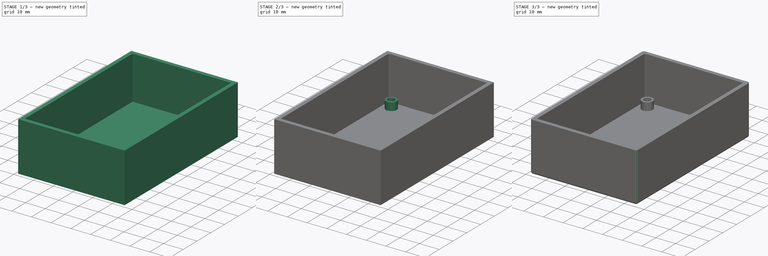
[diagram: build sequence overview — one tinted view per stage of 3, left to right]
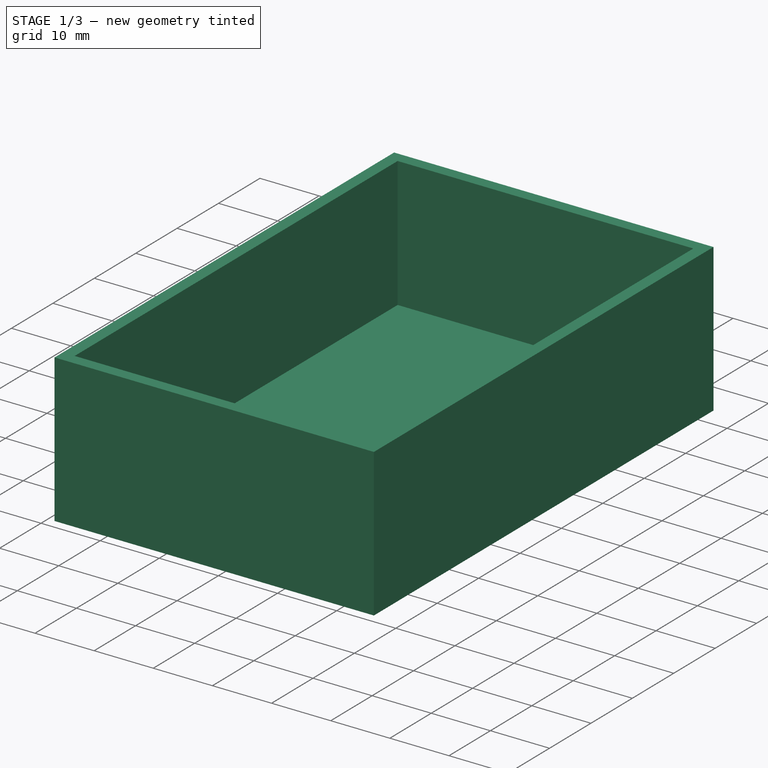
[diagram: stage 1 of 3 — iso view after this stage's code; geometry added in this stage tinted green]
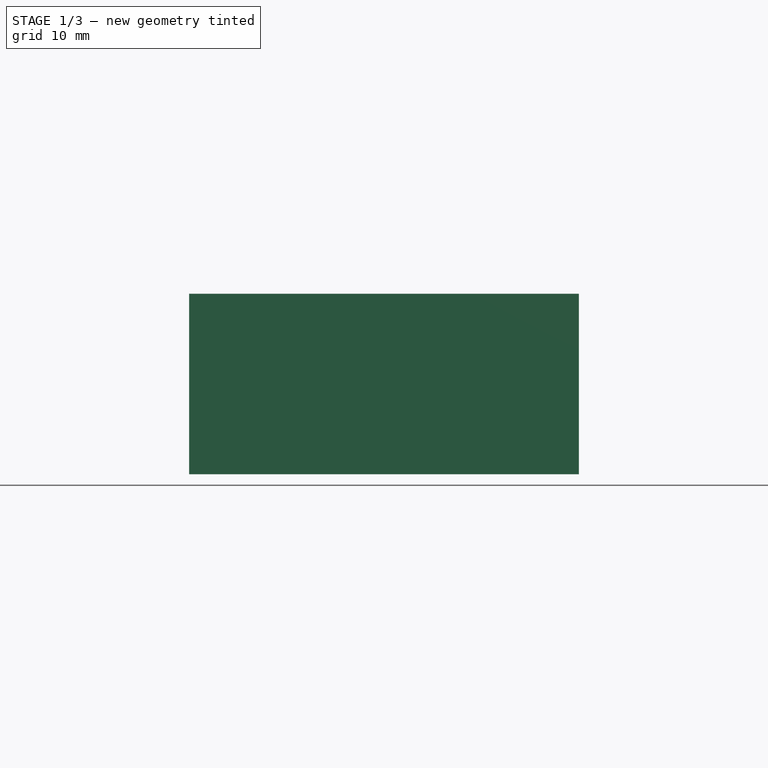
[diagram: stage 1 of 3 — front view after this stage's code; geometry added in this stage tinted green]
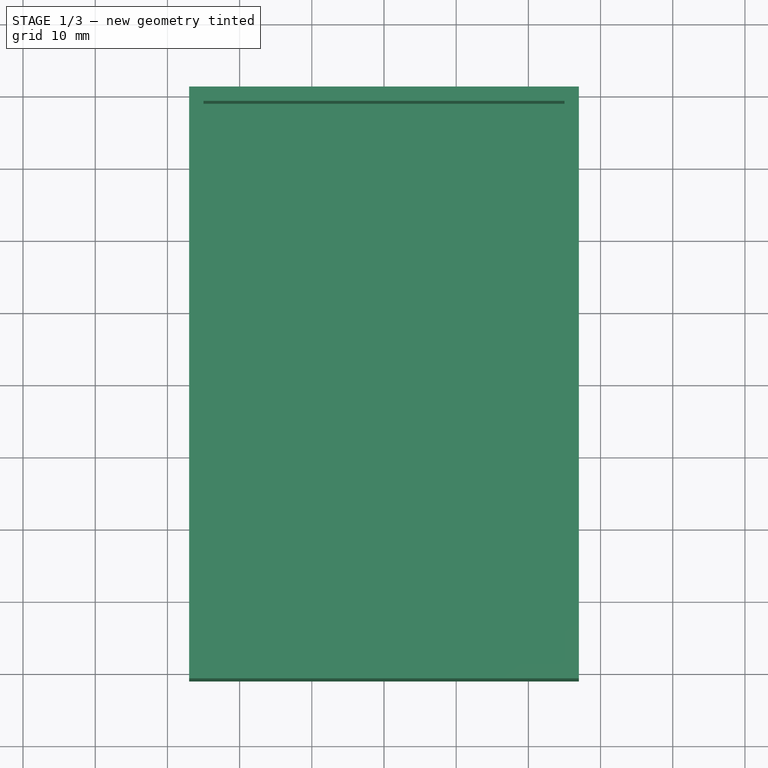
[diagram: stage 1 of 3 — top view after this stage's code; geometry added in this stage tinted green]
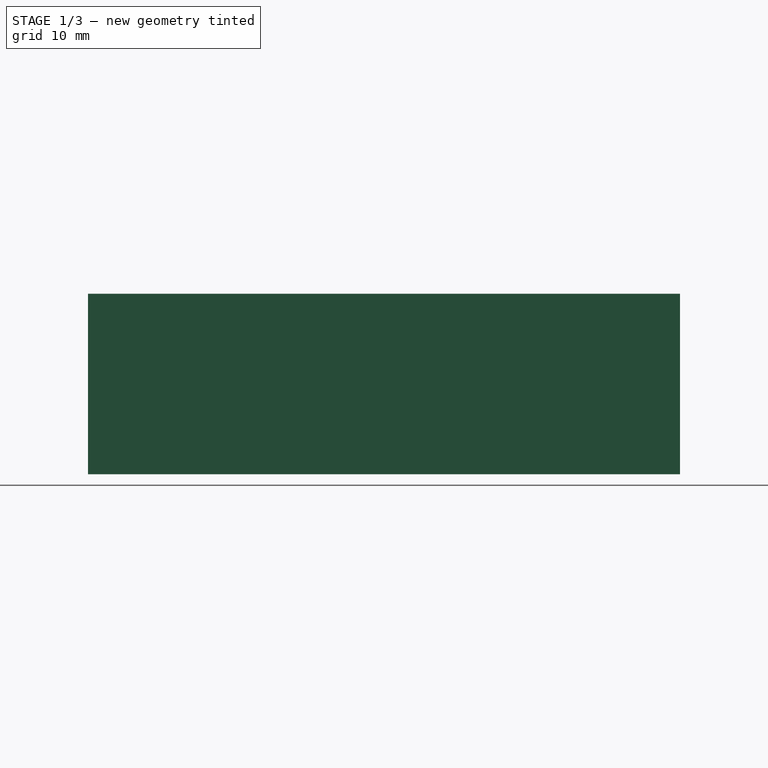
[diagram: stage 1 of 3 — right view after this stage's code; geometry added in this stage tinted green]
FCSTD DOCUMENT  (FreeCAD 0.18R16146 (Git))
Label: medium_nuclone_cover_expansion
License: All rights reserved
LicenseURL: http://en.wikipedia.org/wiki/All_rights_reserved
objects: Sketcher::SketchObject×4, PartDesign::Pad×2, PartDesign::Pocket×2, PartDesign::Chamfer×1, PartDesign::Fillet×1, PartDesign::Body×1
note: 15 computed .brp shape members not serialized (recipe doc carries the construction recipe); baked Part::Feature solids carry a one-line shape summary decoded from their .brp

FEATURE [Sketcher::SketchObject] Sketch  label="cover body sketch"
  MapMode = 5
  Support = -> [XY_Plane]
  sketch-geometry (4):
    g0: LineSegment StartX=-27 StartY=41 StartZ=0 EndX=27 EndY=41 EndZ=0
    g1: LineSegment StartX=27 StartY=41 StartZ=0 EndX=27 EndY=-41 EndZ=0
    g2: LineSegment StartX=27 StartY=-41 StartZ=0 EndX=-27 EndY=-41 EndZ=0
    g3: LineSegment StartX=-27 StartY=-41 StartZ=0 EndX=-27 EndY=41 EndZ=0
  constraints (10):
    c: Coincident(g0,g1)
    c: Coincident(g1,g2)
    c: Coincident(g2,g3)
    c: Coincident(g3,g0)
    c: Horizontal(g2)
    c: Vertical(g3)
    c: Symmetric(g0,g0,g-2)
    c: Symmetric(g1,g0,g-1)
    c: Distance(g2) = 54
    c: Distance(g1) = 82
FEATURE [PartDesign::Pad] Pad  label="cover body"
  Length = 25
  Length2 = 100
  Profile = -> Sketch
  Type = 0
FEATURE [Sketcher::SketchObject] Sketch001  label="cover inside sketc"
  ExternalGeometry = -> [Pad]
  MapMode = 5
  Placement = pos=(0,0,25) rot=(0,0,1;0rad)
  Support = -> [Pad]
  sketch-geometry (4):
    g0: LineSegment StartX=-25 StartY=39 StartZ=0 EndX=25 EndY=39 EndZ=0
    g1: LineSegment StartX=25 StartY=39 StartZ=0 EndX=25 EndY=-39 EndZ=0
    g2: LineSegment StartX=25 StartY=-39 StartZ=0 EndX=-25 EndY=-39 EndZ=0
    g3: LineSegment StartX=-25 StartY=-39 StartZ=0 EndX=-25 EndY=39 EndZ=0
  constraints (10):
    c: Coincident(g0,g1)
    c: Coincident(g1,g2)
    c: Coincident(g2,g3)
    c: Coincident(g3,g0)
    c: Horizontal(g2)
    c: Vertical(g3)
    c: Symmetric(g0,g1,g-1)
    c: Symmetric(g0,g0,g-2)
    c: Distance(g0,g-3) = 2
    c: Distance(g0,g-4) = 2
FEATURE [PartDesign::Pocket] Pocket  label="cover inside"
  BaseFeature = -> Pad
  Length = 22
  Length2 = 100
  Profile = -> Sketch001
  Type = 0
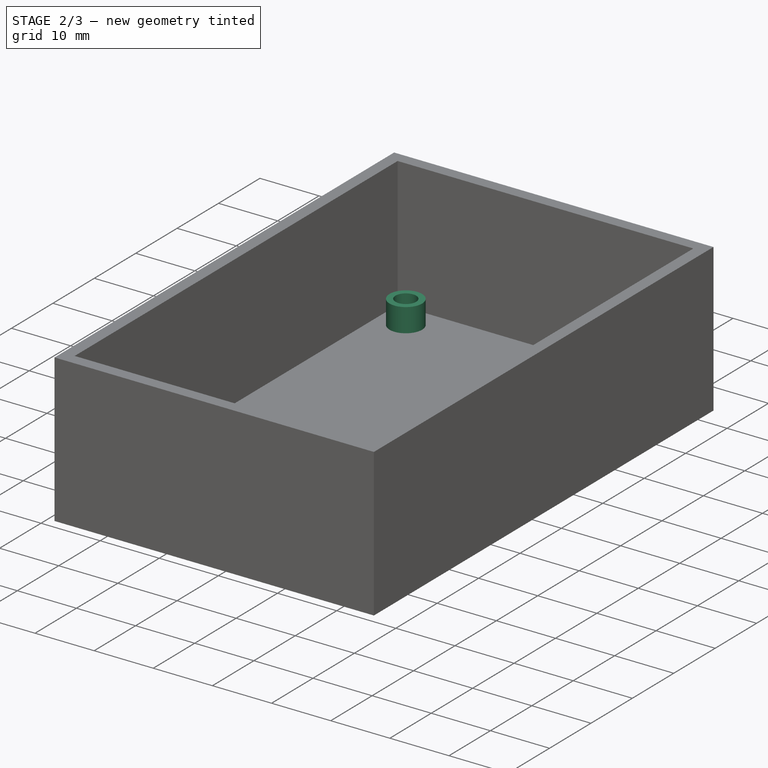
[diagram: stage 2 of 3 — iso view after this stage's code; geometry added in this stage tinted green]
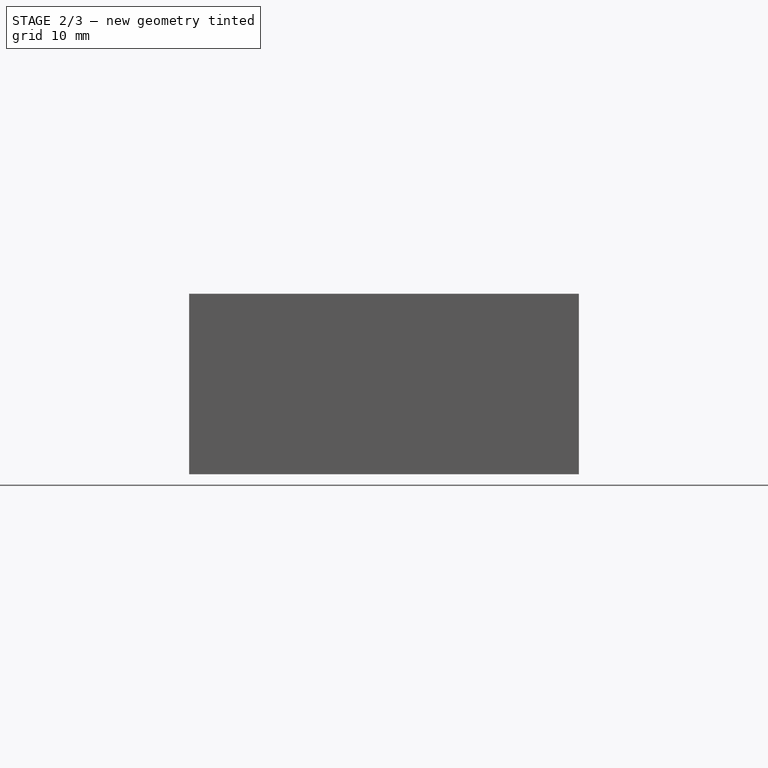
[diagram: stage 2 of 3 — front view after this stage's code; geometry added in this stage tinted green]
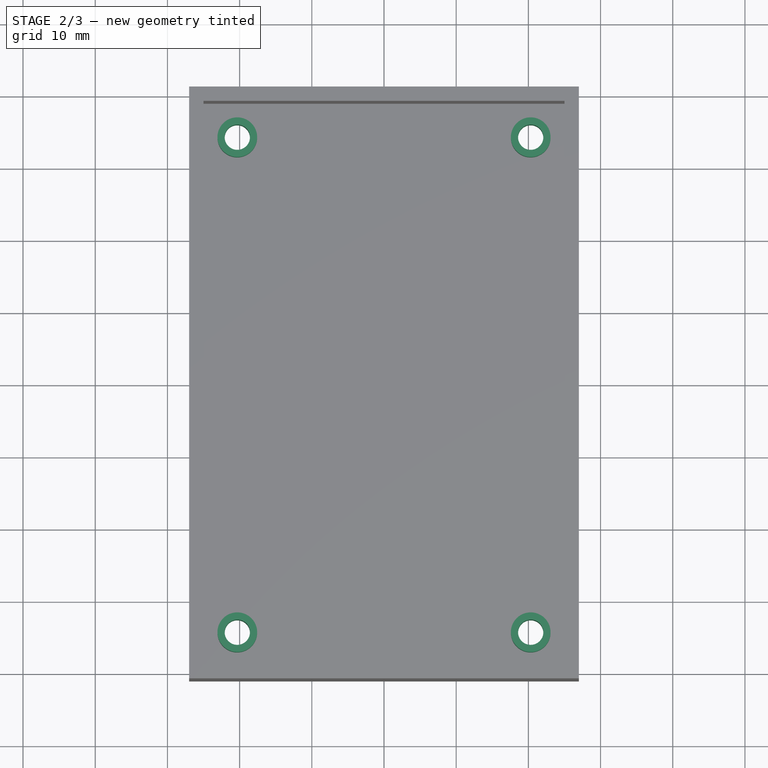
[diagram: stage 2 of 3 — top view after this stage's code; geometry added in this stage tinted green]
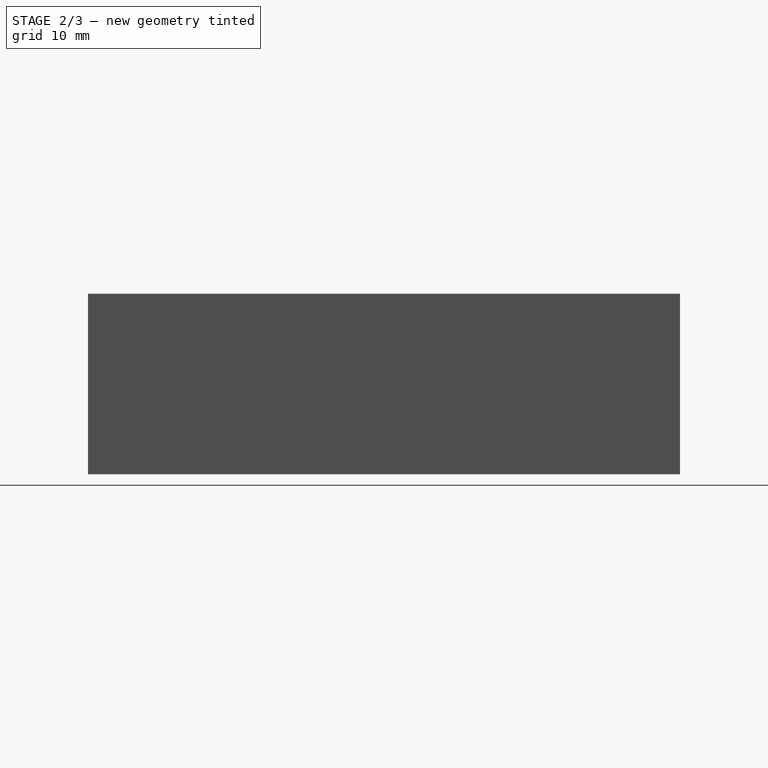
[diagram: stage 2 of 3 — right view after this stage's code; geometry added in this stage tinted green]
FEATURE [Sketcher::SketchObject] Sketch002  label="cover holes posts sketch"
  MapMode = 5
  Placement = pos=(0,0,3) rot=(0,0,1;0rad)
  Support = -> [Pocket]
  sketch-geometry (8):
    g0: LineSegment [constr] StartX=-20.32 StartY=34.29 StartZ=0 EndX=20.32 EndY=34.29 EndZ=0
    g1: LineSegment [constr] StartX=20.32 StartY=34.29 StartZ=0 EndX=20.32 EndY=-34.29 EndZ=0
    g2: LineSegment [constr] StartX=20.32 StartY=-34.29 StartZ=0 EndX=-20.32 EndY=-34.29 EndZ=0
    g3: LineSegment [constr] StartX=-20.32 StartY=-34.29 StartZ=0 EndX=-20.32 EndY=34.29 EndZ=0
    g4: Circle CenterX=-20.32 CenterY=34.29 CenterZ=0 NormalX=0 NormalY=0 NormalZ=1 AngleXU=0 Radius=2.75
    g5: Circle CenterX=20.32 CenterY=34.29 CenterZ=0 NormalX=0 NormalY=0 NormalZ=1 AngleXU=0 Radius=2.75
    g6: Circle CenterX=-20.32 CenterY=-34.29 CenterZ=0 NormalX=0 NormalY=0 NormalZ=1 AngleXU=0 Radius=2.75
    g7: Circle CenterX=20.32 CenterY=-34.29 CenterZ=0 NormalX=0 NormalY=0 NormalZ=1 AngleXU=0 Radius=2.75
  constraints (18):
    c: Coincident(g0,g1)
    c: Coincident(g1,g2)
    c: Coincident(g2,g3)
    c: Coincident(g3,g0)
    c: Horizontal(g2)
    c: Vertical(g3)
    c: Symmetric(g0,g0,g-2)
    c: Symmetric(g0,g1,g-1)
    c: Distance(g2) = 40.64
    c: Distance(g3) = 68.58
    c: Equal(g4,g5)
    c: Equal(g5,g7)
    c: Equal(g7,g6)
    c: Diameter(g4) = 5.5
    c: Coincident(g4,g0)
    c: Coincident(g5,g0)
    c: Coincident(g6,g2)
    c: Coincident(g7,g1)
FEATURE [PartDesign::Pad] Pad001  label="cover holes posts"
  BaseFeature = -> Pocket
  Length = 4
  Length2 = 100
  Profile = -> Sketch002
  Type = 0
FEATURE [Sketcher::SketchObject] Sketch003  label="cover holes sketch"
  ExternalGeometry = -> [Pad001]
  MapMode = 5
  Placement = pos=(0,0,0) rot=(1,0,0;3.14159rad)
  Support = -> [Pad001]
  sketch-geometry (4):
    g0: Circle CenterX=20.32 CenterY=-34.29 CenterZ=0 NormalX=0 NormalY=0 NormalZ=1 AngleXU=0 Radius=1.75
    g1: Circle CenterX=-20.32 CenterY=-34.29 CenterZ=0 NormalX=0 NormalY=0 NormalZ=1 AngleXU=0 Radius=1.75
    g2: Circle CenterX=-20.32 CenterY=34.29 CenterZ=0 NormalX=0 NormalY=0 NormalZ=1 AngleXU=0 Radius=1.75
    g3: Circle CenterX=20.32 CenterY=34.29 CenterZ=0 NormalX=0 NormalY=0 NormalZ=1 AngleXU=0 Radius=1.75
  constraints (8):
    c: Equal(g0,g1)
    c: Equal(g1,g2)
    c: Equal(g2,g3)
    c: Coincident(g0,g-6)
    c: Coincident(g1,g-5)
    c: Coincident(g2,g-4)
    c: Coincident(g3,g-3)
    c: Diameter(g1) = 3.5
FEATURE [PartDesign::Pocket] Pocket001  label="cover holes"
  BaseFeature = -> Pad001
  Length = 23
  Length2 = 100
  Profile = -> Sketch003
  Type = 0
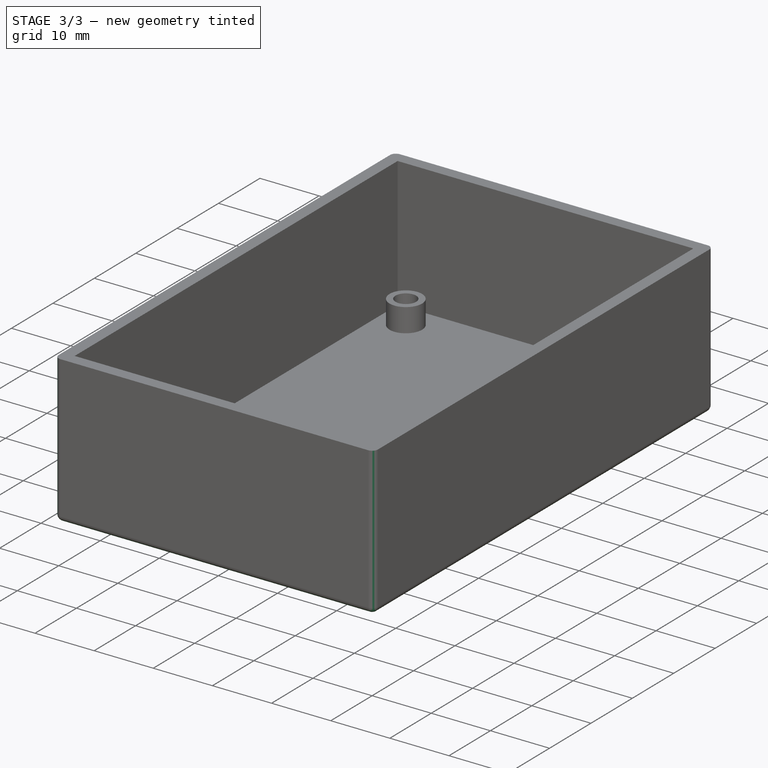
[diagram: stage 3 of 3 — iso view after this stage's code; geometry added in this stage tinted green]
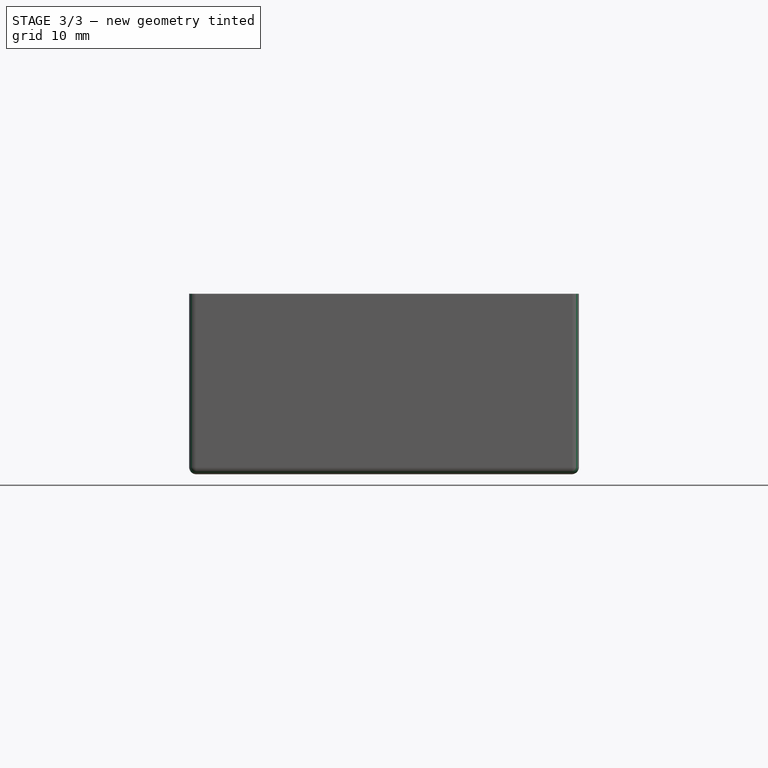
[diagram: stage 3 of 3 — front view after this stage's code; geometry added in this stage tinted green]
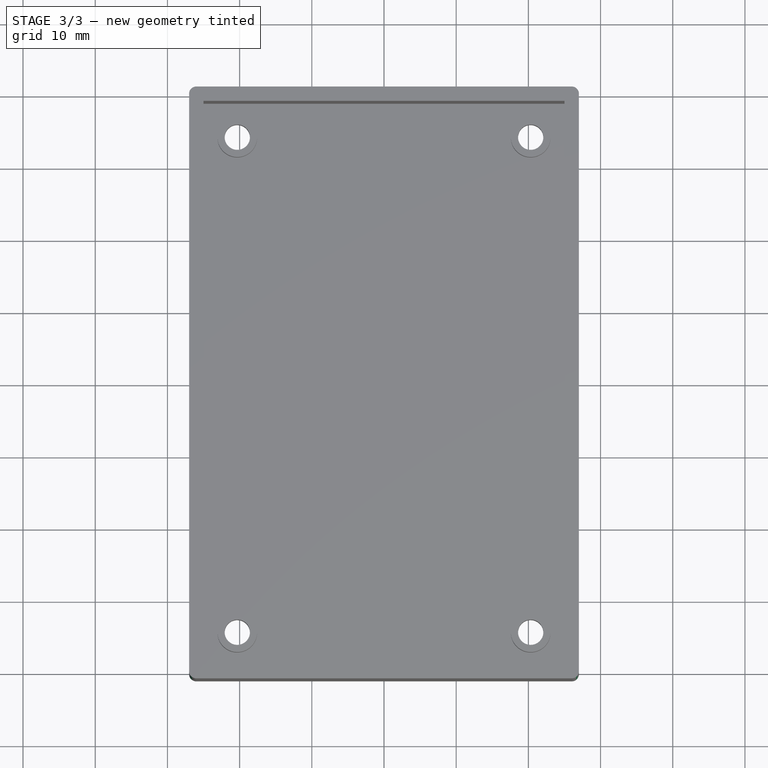
[diagram: stage 3 of 3 — top view after this stage's code; geometry added in this stage tinted green]
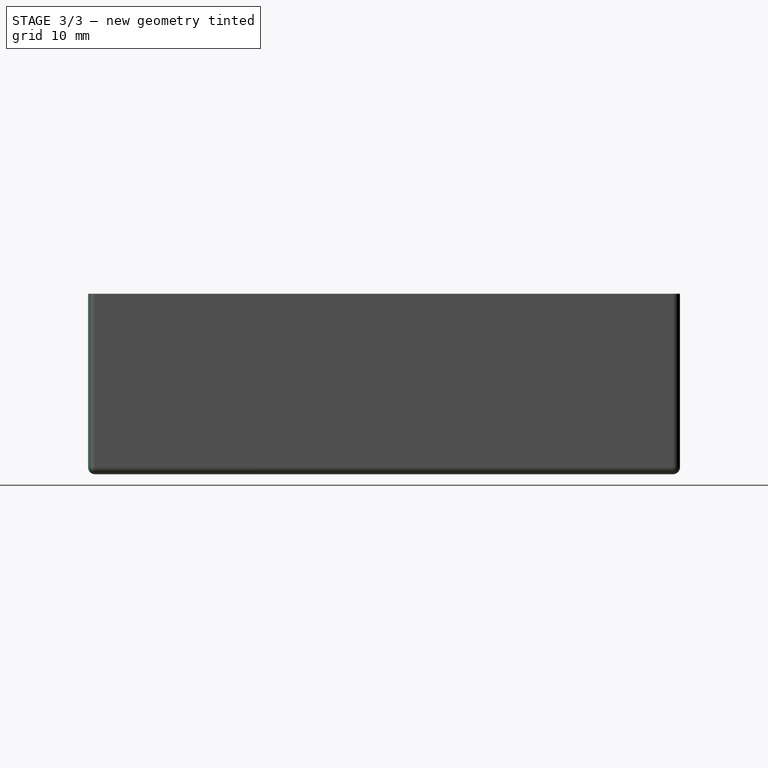
[diagram: stage 3 of 3 — right view after this stage's code; geometry added in this stage tinted green]
FEATURE [PartDesign::Chamfer] Chamfer  label="cover hole chamfers"
  Base = -> Pocket001 [Edge13,Edge14,Edge15,Edge12]
  BaseFeature = -> Pocket001
  Size = 1.5
FEATURE [PartDesign::Fillet] Fillet  label="cover outside fillets"
  Base = -> Chamfer [Edge2,Edge12,Edge4,Edge5,Edge3,Edge11,Edge16,Edge14]
  BaseFeature = -> Chamfer
  Radius = 1
FEATURE [PartDesign::Body] Body
  Group = -> [Sketch,Pad,Sketch001,Pocket,Sketch002,Pad001,Sketch003,Pocket001,Chamfer,Fillet]
  Origin = -> Origin
  Tip = -> Fillet
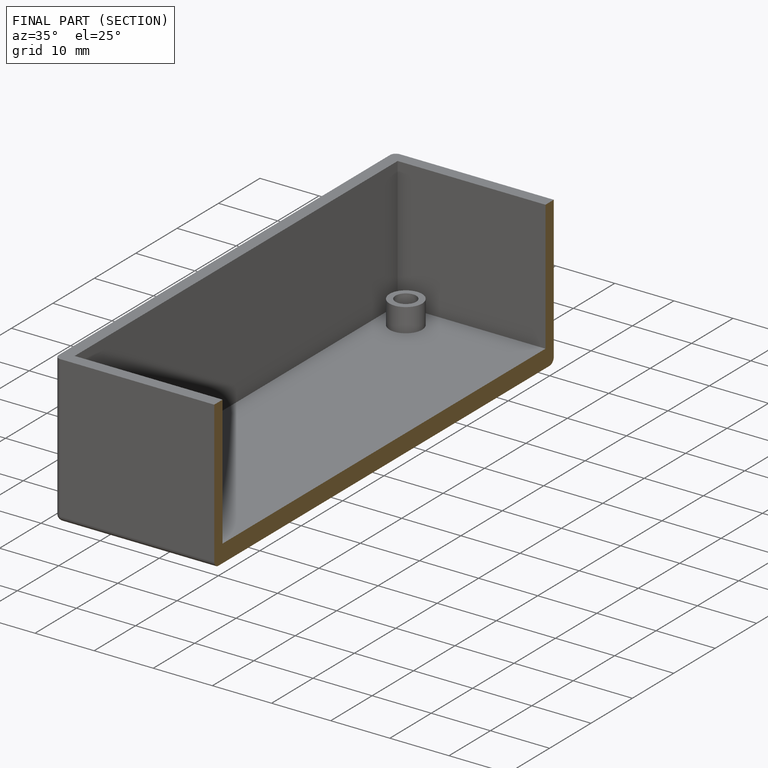
[diagram: finished part — half-section view (interior)]
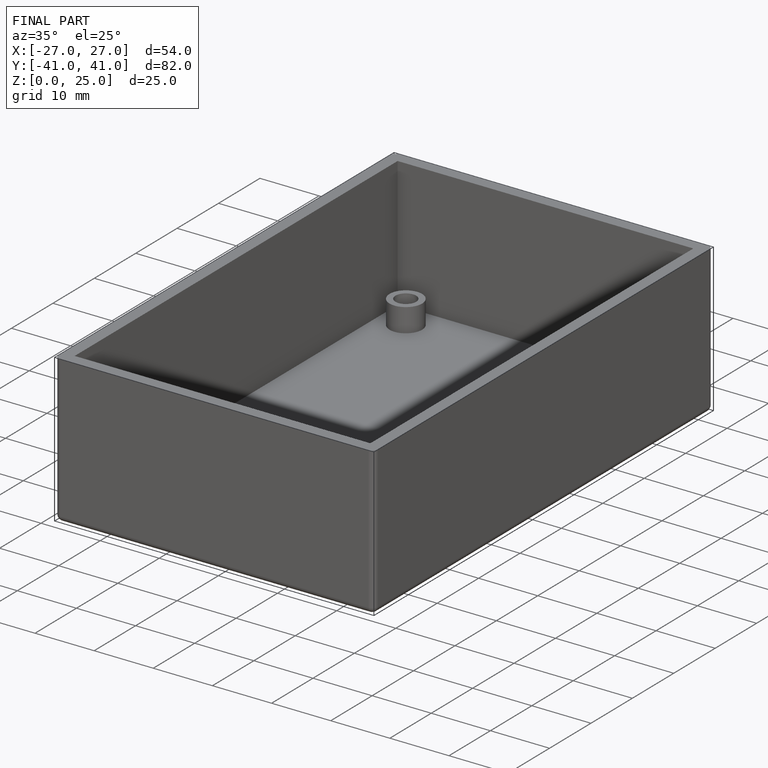
[diagram: finished part — iso view with bounding-box wireframe]
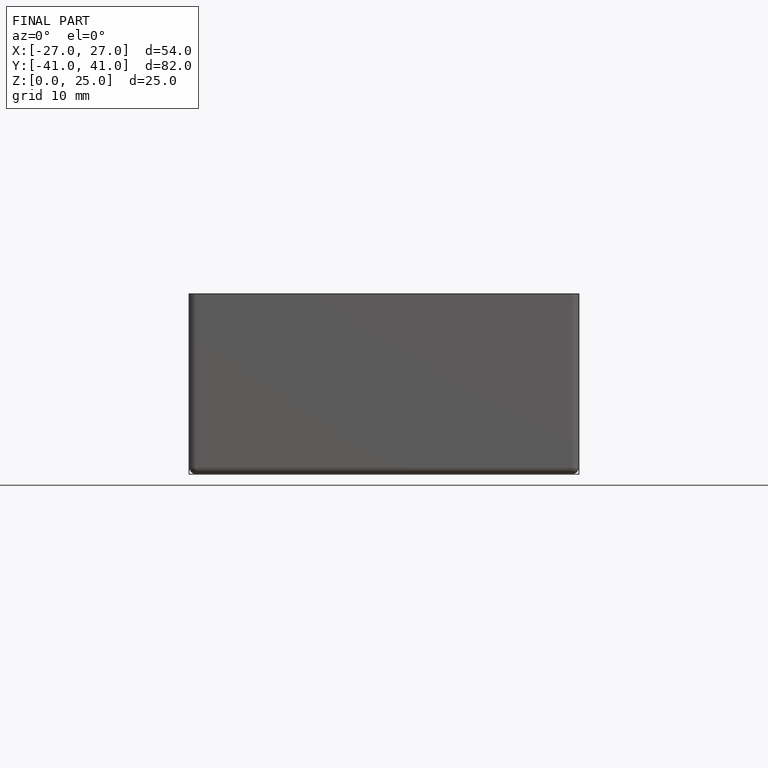
[diagram: finished part — front view with bounding-box wireframe]
